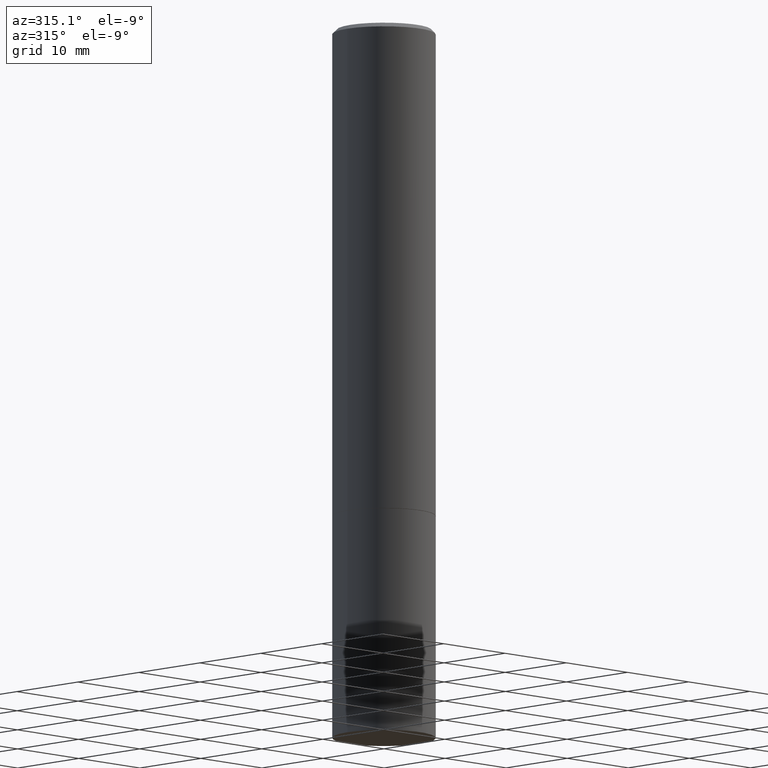
[diagram: clean part render]
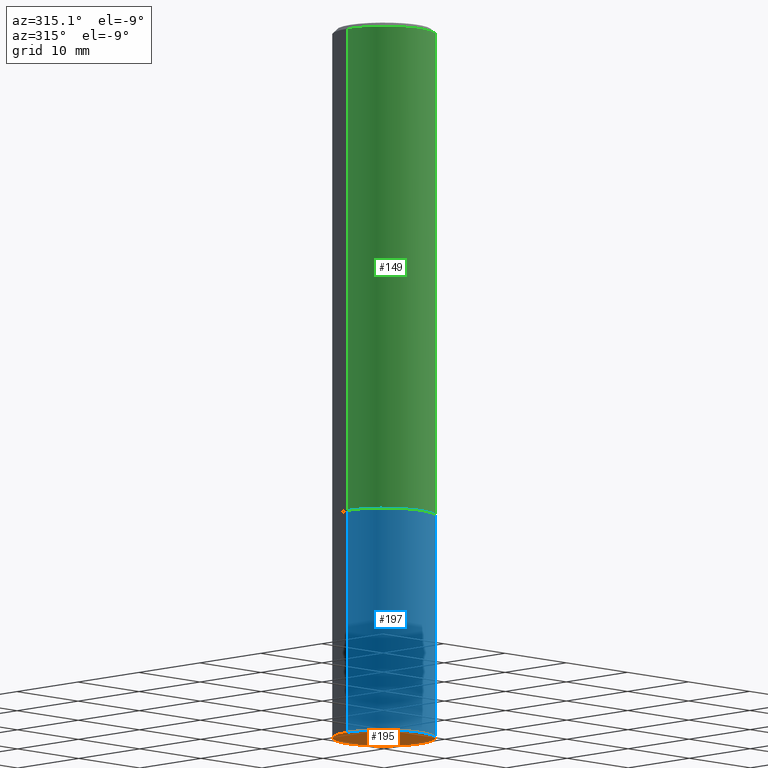
[diagram: same view with three faces highlighted in distinct colors, each labeled with its STEP entity id]
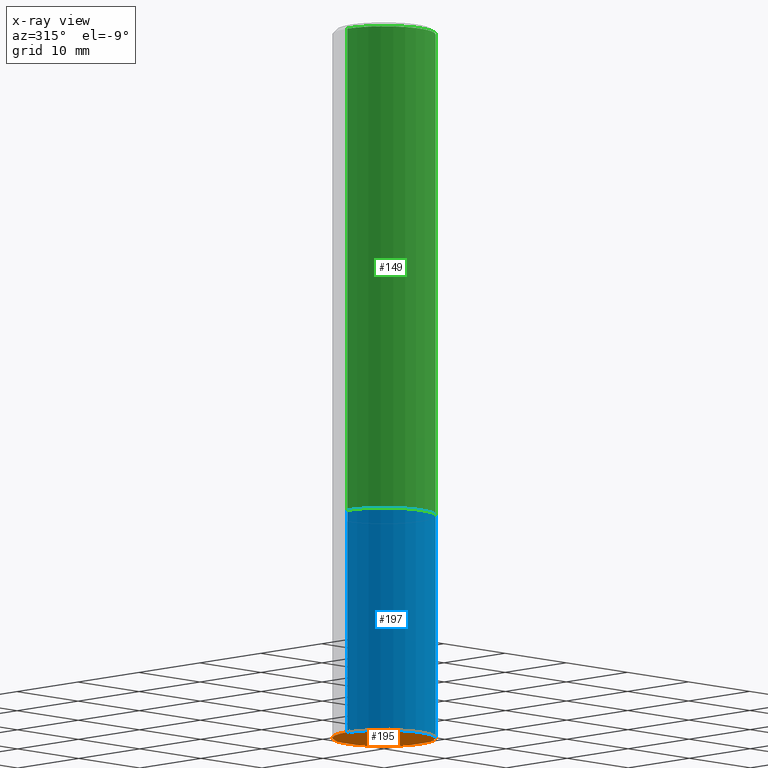
[diagram: x-ray of the same camera — body ghosted, the three highlighted faces saturated]
A machine part, auxiliary view with three faces highlighted in distinct colors.
The next image is the same camera in x-ray (body ghosted, the three faces saturated) — at least one of them is partly hidden behind the body in this view.
Their STEP definitions:

[orange] entity #195 — the highlighted planar face has unit normal (0, -0, -1).
#13 = CIRCLE ( 'NONE', #361, 0.2361999999999999933 ) ;
#23 = AXIS2_PLACEMENT_3D ( 'NONE', #151, #356, #199 ) ;
#32 = EDGE_CURVE ( 'NONE', #190, #290, #13, .T. ) ;
#34 = PLANE ( 'NONE',  #23 ) ;
#59 = EDGE_LOOP ( 'NONE', ( #179, #92 ) ) ;
#86 = DIRECTION ( 'NONE',  ( -2.445468806185136597E-29, 3.491481338843145583E-15, 1.000000000000000000 ) ) ;
#92 = ORIENTED_EDGE ( 'NONE', *, *, #205, .F. ) ;
#109 = CARTESIAN_POINT ( 'NONE',  ( 7.991058417971171713E-29, -1.140911357093774644E-14, -3.267700000000000049 ) ) ;
#139 = DIRECTION ( 'NONE',  ( 1.000000000000000000, -6.982962677686265133E-15, 0.000000000000000000 ) ) ;
#151 = CARTESIAN_POINT ( 'NONE',  ( 1.649375784469575806E-15, 0.2361999999999885858, -3.267700000000001381 ) ) ;
#166 = FACE_OUTER_BOUND ( 'NONE', #59, .T. ) ;
#179 = ORIENTED_EDGE ( 'NONE', *, *, #32, .F. ) ;
#190 = VERTEX_POINT ( 'NONE', #234 ) ;
#191 = DIRECTION ( 'NONE',  ( 1.000000000000000000, -6.982962677686265133E-15, 0.000000000000000000 ) ) ;
#195 = ADVANCED_FACE ( 'NONE', ( #166 ), #34, .T. ) ;
#199 = DIRECTION ( 'NONE',  ( -1.000000000000000000, 6.982962677686265922E-15, -4.876176775795935793E-29 ) ) ;
#205 = EDGE_CURVE ( 'NONE', #290, #190, #350, .T. ) ;
#217 = CARTESIAN_POINT ( 'NONE',  ( 7.991058417971171713E-29, -1.140911357093774644E-14, -3.267700000000000049 ) ) ;
#234 = CARTESIAN_POINT ( 'NONE',  ( 0.2361999999999999933, -1.305848935540724297E-14, -3.267700000000000049 ) ) ;
#273 = CARTESIAN_POINT ( 'NONE',  ( -0.2361999999999999933, -7.943871479852467996E-15, -3.267700000000000049 ) ) ;
#290 = VERTEX_POINT ( 'NONE', #273 ) ;
#329 = AXIS2_PLACEMENT_3D ( 'NONE', #109, #86, #139 ) ;
#349 = DIRECTION ( 'NONE',  ( -2.445468806185136597E-29, 3.491481338843145583E-15, 1.000000000000000000 ) ) ;
#350 = CIRCLE ( 'NONE', #329, 0.2361999999999999933 ) ;
#356 = DIRECTION ( 'NONE',  ( 2.438088387897960049E-29, -3.491481338843145188E-15, -1.000000000000000000 ) ) ;
#361 = AXIS2_PLACEMENT_3D ( 'NONE', #217, #349, #191 ) ;

[blue] entity #197 — the highlighted cylindrical surface (partial cylindrical patch) has radius 5.9995 mm, axis along (-0, 0, 1).
#1 = EDGE_LOOP ( 'NONE', ( #343, #241, #97, #204 ) ) ;
#10 = AXIS2_PLACEMENT_3D ( 'NONE', #236, #301, #311 ) ;
#20 = CARTESIAN_POINT ( 'NONE',  ( -0.2361999999999999933, 1.678301941865356591E-15, -1.161852468318208757E-29 ) ) ;
#44 = DIRECTION ( 'NONE',  ( -2.445468806185136877E-29, 3.491481338843145188E-15, 1.000000000000000000 ) ) ;
#50 = CARTESIAN_POINT ( 'NONE',  ( 0.2361999999999999933, -1.649375784469496131E-15, 1.151752954443000088E-29 ) ) ;
#51 = EDGE_CURVE ( 'NONE', #190, #67, #294, .T. ) ;
#62 = DIRECTION ( 'NONE',  ( -2.445468806185136597E-29, 3.491481338843145583E-15, 1.000000000000000000 ) ) ;
#67 = VERTEX_POINT ( 'NONE', #99 ) ;
#72 = CARTESIAN_POINT ( 'NONE',  ( -0.2361999999999999933, -7.943871479852467996E-15, -2.244100000000000428 ) ) ;
#86 = DIRECTION ( 'NONE',  ( -2.445468806185136597E-29, 3.491481338843145583E-15, 1.000000000000000000 ) ) ;
#91 = DIRECTION ( 'NONE',  ( 1.000000000000000000, -6.982962677686266711E-15, 4.876176775795936353E-29 ) ) ;
#97 = ORIENTED_EDGE ( 'NONE', *, *, #51, .T. ) ;
#99 = CARTESIAN_POINT ( 'NONE',  ( 0.2361999999999999933, -9.484609056967400443E-15, -2.244100000000000428 ) ) ;
#106 = VERTEX_POINT ( 'NONE', #72 ) ;
#109 = CARTESIAN_POINT ( 'NONE',  ( 7.991058417971171713E-29, -1.140911357093774644E-14, -3.267700000000000049 ) ) ;
#116 = FACE_OUTER_BOUND ( 'NONE', #1, .T. ) ;
#122 = VECTOR ( 'NONE', #44, 39.37007874015748143 ) ;
#128 = LINE ( 'NONE', #20, #122 ) ;
#138 = EDGE_CURVE ( 'NONE', #290, #106, #128, .T. ) ;
#139 = DIRECTION ( 'NONE',  ( 1.000000000000000000, -6.982962677686265133E-15, 0.000000000000000000 ) ) ;
#173 = EDGE_CURVE ( 'NONE', #106, #67, #295, .T. ) ;
#190 = VERTEX_POINT ( 'NONE', #234 ) ;
#197 = ADVANCED_FACE ( 'NONE', ( #116 ), #246, .T. ) ;
#204 = ORIENTED_EDGE ( 'NONE', *, *, #173, .F. ) ;
#205 = EDGE_CURVE ( 'NONE', #290, #190, #350, .T. ) ;
#234 = CARTESIAN_POINT ( 'NONE',  ( 0.2361999999999999933, -1.305848935540724297E-14, -3.267700000000000049 ) ) ;
#236 = CARTESIAN_POINT ( 'NONE',  ( 5.487876547960065873E-29, -7.835233272497903917E-15, -2.244100000000000428 ) ) ;
#241 = ORIENTED_EDGE ( 'NONE', *, *, #205, .T. ) ;
#246 = CYLINDRICAL_SURFACE ( 'NONE', #275, 0.2361999999999999933 ) ;
#273 = CARTESIAN_POINT ( 'NONE',  ( -0.2361999999999999933, -7.943871479852467996E-15, -3.267700000000000049 ) ) ;
#275 = AXIS2_PLACEMENT_3D ( 'NONE', #288, #62, #91 ) ;
#288 = CARTESIAN_POINT ( 'NONE',  ( 0.000000000000000000, 0.000000000000000000, 0.000000000000000000 ) ) ;
#290 = VERTEX_POINT ( 'NONE', #273 ) ;
#294 = LINE ( 'NONE', #50, #345 ) ;
#295 = CIRCLE ( 'NONE', #10, 0.2361999999999999933 ) ;
#301 = DIRECTION ( 'NONE',  ( -2.445468806185136597E-29, 3.491481338843145583E-15, 1.000000000000000000 ) ) ;
#311 = DIRECTION ( 'NONE',  ( 1.000000000000000000, -6.982962677686269077E-15, 0.000000000000000000 ) ) ;
#329 = AXIS2_PLACEMENT_3D ( 'NONE', #109, #86, #139 ) ;
#343 = ORIENTED_EDGE ( 'NONE', *, *, #138, .F. ) ;
#345 = VECTOR ( 'NONE', #347, 39.37007874015748143 ) ;
#347 = DIRECTION ( 'NONE',  ( -2.445468806185136877E-29, 3.491481338843145188E-15, 1.000000000000000000 ) ) ;
#350 = CIRCLE ( 'NONE', #329, 0.2361999999999999933 ) ;

[green] entity #149 — the highlighted cylindrical surface (partial cylindrical patch) has radius 5.9995 mm, axis along (-0, 0, 1).
#4 = VERTEX_POINT ( 'NONE', #168 ) ;
#16 = CARTESIAN_POINT ( 'NONE',  ( 5.485431079153880270E-29, -7.831741791159060910E-15, -2.243100000000000094 ) ) ;
#17 = FACE_OUTER_BOUND ( 'NONE', #150, .T. ) ;
#18 = ORIENTED_EDGE ( 'NONE', *, *, #286, .F. ) ;
#38 = DIRECTION ( 'NONE',  ( -2.445468806185136597E-29, 3.491481338843145583E-15, 1.000000000000000000 ) ) ;
#46 = AXIS2_PLACEMENT_3D ( 'NONE', #118, #38, #266 ) ;
#47 = DIRECTION ( 'NONE',  ( -2.445468806185136877E-29, 3.491481338843145188E-15, 1.000000000000000000 ) ) ;
#73 = EDGE_CURVE ( 'NONE', #153, #237, #320, .T. ) ;
#101 = DIRECTION ( 'NONE',  ( 1.000000000000000000, -6.982962677686269866E-15, 0.000000000000000000 ) ) ;
#103 = DIRECTION ( 'NONE',  ( -2.445468806185136877E-29, 3.491481338843145188E-15, 1.000000000000000000 ) ) ;
#110 = CARTESIAN_POINT ( 'NONE',  ( -0.2361999999999997157, 1.579546157692631255E-15, -0.02000000000000005246 ) ) ;
#112 = AXIS2_PLACEMENT_3D ( 'NONE', #228, #258, #332 ) ;
#118 = CARTESIAN_POINT ( 'NONE',  ( 0.000000000000000000, 0.000000000000000000, 0.000000000000000000 ) ) ;
#120 = VERTEX_POINT ( 'NONE', #325 ) ;
#126 = DIRECTION ( 'NONE',  ( -2.445468806185136597E-29, 3.491481338843145583E-15, 1.000000000000000000 ) ) ;
#129 = LINE ( 'NONE', #291, #156 ) ;
#132 = EDGE_CURVE ( 'NONE', #4, #120, #129, .T. ) ;
#133 = ORIENTED_EDGE ( 'NONE', *, *, #132, .T. ) ;
#149 = ADVANCED_FACE ( 'NONE', ( #17 ), #305, .T. ) ;
#150 = EDGE_LOOP ( 'NONE', ( #358, #285, #133, #18 ) ) ;
#153 = VERTEX_POINT ( 'NONE', #355 ) ;
#156 = VECTOR ( 'NONE', #47, 39.37007874015748143 ) ;
#165 = CIRCLE ( 'NONE', #208, 0.2361999999999999655 ) ;
#168 = CARTESIAN_POINT ( 'NONE',  ( 0.2361999999999999655, -9.481117575628557435E-15, -2.243100000000000094 ) ) ;
#208 = AXIS2_PLACEMENT_3D ( 'NONE', #16, #126, #101 ) ;
#228 = CARTESIAN_POINT ( 'NONE',  ( 4.890937612370285420E-31, -6.982962677686308865E-17, -0.02000000000000005246 ) ) ;
#237 = VERTEX_POINT ( 'NONE', #110 ) ;
#258 = DIRECTION ( 'NONE',  ( -2.445468806185136597E-29, 3.491481338843145583E-15, 1.000000000000000000 ) ) ;
#266 = DIRECTION ( 'NONE',  ( 1.000000000000000000, -6.982962677686266711E-15, 4.876176775795935793E-29 ) ) ;
#278 = VECTOR ( 'NONE', #103, 39.37007874015748143 ) ;
#285 = ORIENTED_EDGE ( 'NONE', *, *, #362, .T. ) ;
#286 = EDGE_CURVE ( 'NONE', #237, #120, #341, .T. ) ;
#291 = CARTESIAN_POINT ( 'NONE',  ( 0.2361999999999998545, -1.649375784469495145E-15, 1.151752954442999387E-29 ) ) ;
#305 = CYLINDRICAL_SURFACE ( 'NONE', #46, 0.2361999999999998545 ) ;
#317 = CARTESIAN_POINT ( 'NONE',  ( -0.2361999999999998545, 1.678301941865355605E-15, -1.161852468318208056E-29 ) ) ;
#320 = LINE ( 'NONE', #317, #278 ) ;
#325 = CARTESIAN_POINT ( 'NONE',  ( 0.2361999999999997157, -1.690279253850496996E-15, -0.02000000000000005246 ) ) ;
#332 = DIRECTION ( 'NONE',  ( 1.000000000000000000, -6.982962677686266711E-15, 0.000000000000000000 ) ) ;
#341 = CIRCLE ( 'NONE', #112, 0.2361999999999997157 ) ;
#355 = CARTESIAN_POINT ( 'NONE',  ( -0.2361999999999999655, -2.272483767102603343E-15, -2.243100000000000094 ) ) ;
#358 = ORIENTED_EDGE ( 'NONE', *, *, #73, .F. ) ;
#362 = EDGE_CURVE ( 'NONE', #153, #4, #165, .T. ) ;